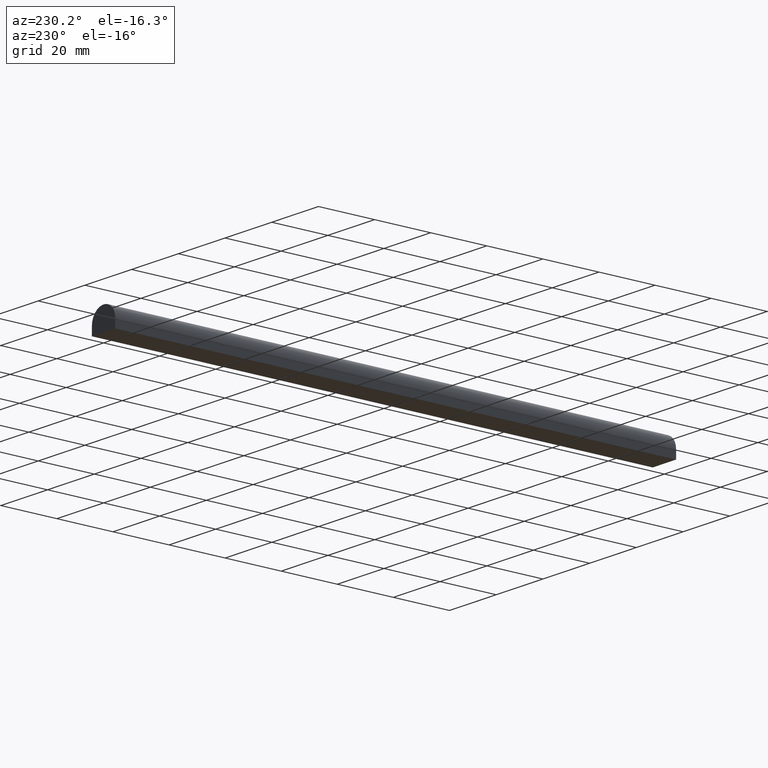
[diagram: clean part render]
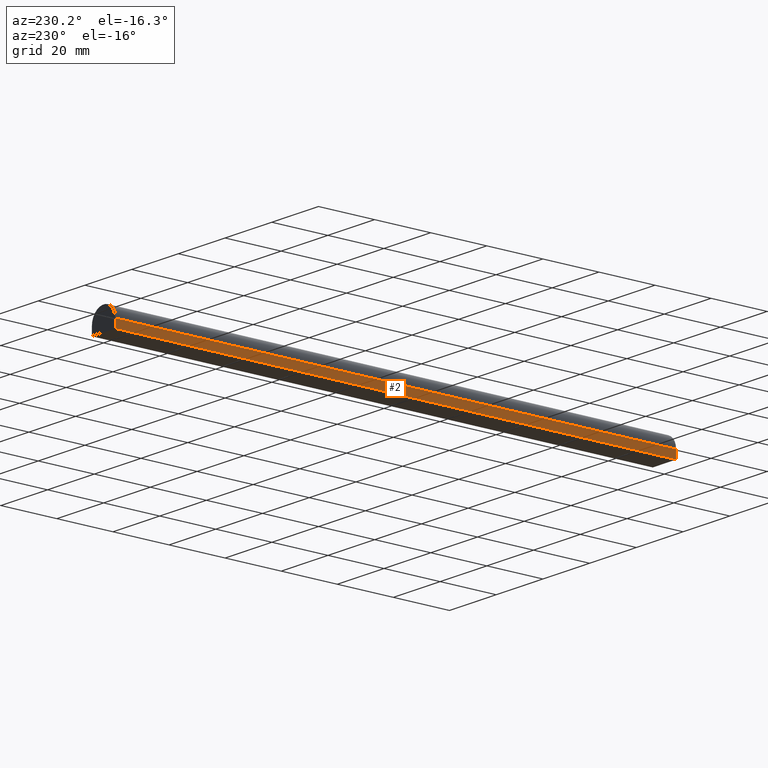
[diagram: same view with one face highlighted and labeled with its STEP entity id]
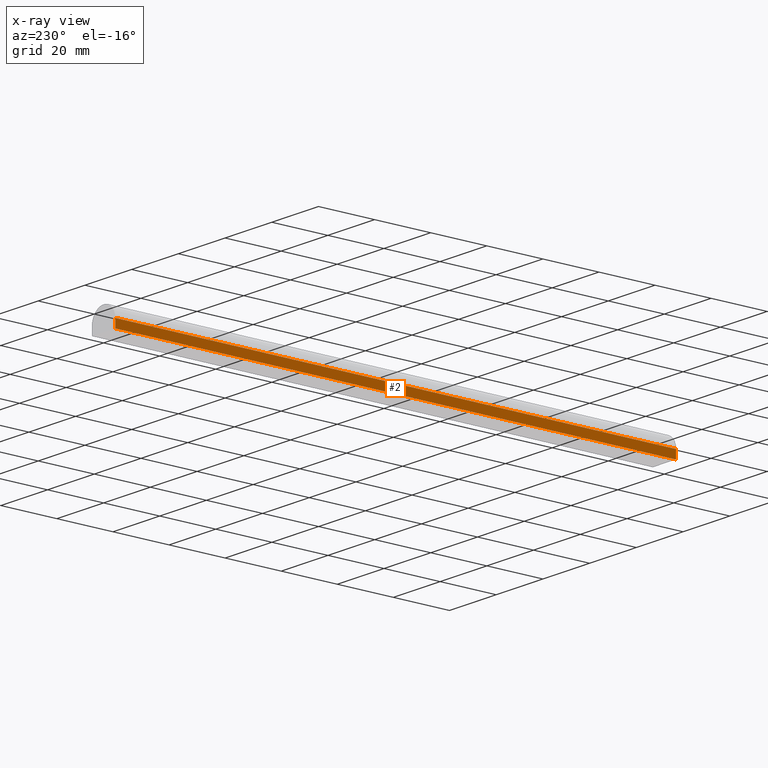
[diagram: x-ray of the same camera — body ghosted, the highlighted face saturated]
A machine part, auxiliary view. The second image highlights one B-rep face of the part: STEP entity #2.
The next image is the same camera in x-ray: the body ghosted, the highlighted face saturated — about 0% of this face is hidden behind the body in this view.
In plain terms, the highlighted planar face has unit normal (-1, 0, 0).
Its self-contained STEP definition (entity closure, byte-faithful):
#2 = ADVANCED_FACE ( 'NONE', ( #11 ), #168, .T. ) ;
#9 = AXIS2_PLACEMENT_3D ( 'NONE', #24, #125, #222 ) ;
#11 = FACE_OUTER_BOUND ( 'NONE', #231, .T. ) ;
#22 = CARTESIAN_POINT ( 'NONE',  ( -5.000000000000000000, 0.0000000000000000000, 0.0000000000000000000 ) ) ;
#24 = CARTESIAN_POINT ( 'NONE',  ( -5.000000000000000000, 1000.000000000000000, -0.9999999999999859000 ) ) ;
#47 = DIRECTION ( 'NONE',  ( 0.0000000000000000000, -1.000000000000000000, 0.0000000000000000000 ) ) ;
#63 = LINE ( 'NONE', #171, #71 ) ;
#65 = EDGE_CURVE ( 'NONE', #150, #68, #157, .T. ) ;
#68 = VERTEX_POINT ( 'NONE', #226 ) ;
#70 = VERTEX_POINT ( 'NONE', #90 ) ;
#71 = VECTOR ( 'NONE', #82, 1000.000000000000000 ) ;
#81 = CARTESIAN_POINT ( 'NONE',  ( -5.000000000000000000, 200.0000000000000000, -0.9999999999999850100 ) ) ;
#82 = DIRECTION ( 'NONE',  ( -0.0000000000000000000, -0.0000000000000000000, -1.000000000000000000 ) ) ;
#90 = CARTESIAN_POINT ( 'NONE',  ( -5.000000000000000000, 0.0000000000000000000, -0.9999999999999850100 ) ) ;
#91 = CARTESIAN_POINT ( 'NONE',  ( -5.000000000000000000, 200.0000000000000000, -4.000000000000000000 ) ) ;
#94 = EDGE_CURVE ( 'NONE', #209, #70, #239, .T. ) ;
#99 = LINE ( 'NONE', #22, #228 ) ;
#102 = CARTESIAN_POINT ( 'NONE',  ( -5.000000000000000000, 1000.000000000000000, -4.000000000000000000 ) ) ;
#125 = DIRECTION ( 'NONE',  ( -1.000000000000000000, 0.0000000000000000000, 0.0000000000000000000 ) ) ;
#137 = ORIENTED_EDGE ( 'NONE', *, *, #216, .T. ) ;
#138 = EDGE_CURVE ( 'NONE', #70, #68, #99, .T. ) ;
#146 = VECTOR ( 'NONE', #187, 1000.000000000000000 ) ;
#150 = VERTEX_POINT ( 'NONE', #91 ) ;
#157 = LINE ( 'NONE', #102, #146 ) ;
#167 = ORIENTED_EDGE ( 'NONE', *, *, #65, .T. ) ;
#168 = PLANE ( 'NONE',  #9 ) ;
#171 = CARTESIAN_POINT ( 'NONE',  ( -5.000000000000000000, 200.0000000000000000, 0.0000000000000000000 ) ) ;
#175 = VECTOR ( 'NONE', #47, 1000.000000000000000 ) ;
#180 = ORIENTED_EDGE ( 'NONE', *, *, #138, .F. ) ;
#187 = DIRECTION ( 'NONE',  ( 0.0000000000000000000, -1.000000000000000000, 0.0000000000000000000 ) ) ;
#189 = ORIENTED_EDGE ( 'NONE', *, *, #94, .F. ) ;
#203 = DIRECTION ( 'NONE',  ( -0.0000000000000000000, -0.0000000000000000000, -1.000000000000000000 ) ) ;
#206 = CARTESIAN_POINT ( 'NONE',  ( -5.000000000000000000, 1000.000000000000000, -0.9999999999999850100 ) ) ;
#209 = VERTEX_POINT ( 'NONE', #81 ) ;
#216 = EDGE_CURVE ( 'NONE', #209, #150, #63, .T. ) ;
#222 = DIRECTION ( 'NONE',  ( 0.0000000000000000000, 0.0000000000000000000, 1.000000000000000000 ) ) ;
#226 = CARTESIAN_POINT ( 'NONE',  ( -5.000000000000000000, 0.0000000000000000000, -4.000000000000000000 ) ) ;
#228 = VECTOR ( 'NONE', #203, 1000.000000000000000 ) ;
#231 = EDGE_LOOP ( 'NONE', ( #180, #189, #137, #167 ) ) ;
#239 = LINE ( 'NONE', #206, #175 ) ;